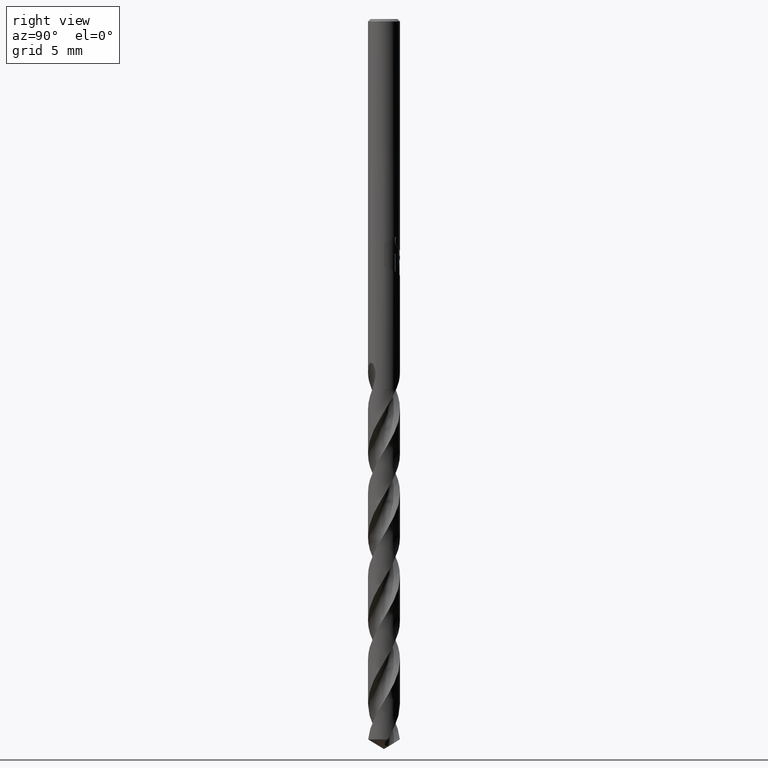
[diagram: clean part render]
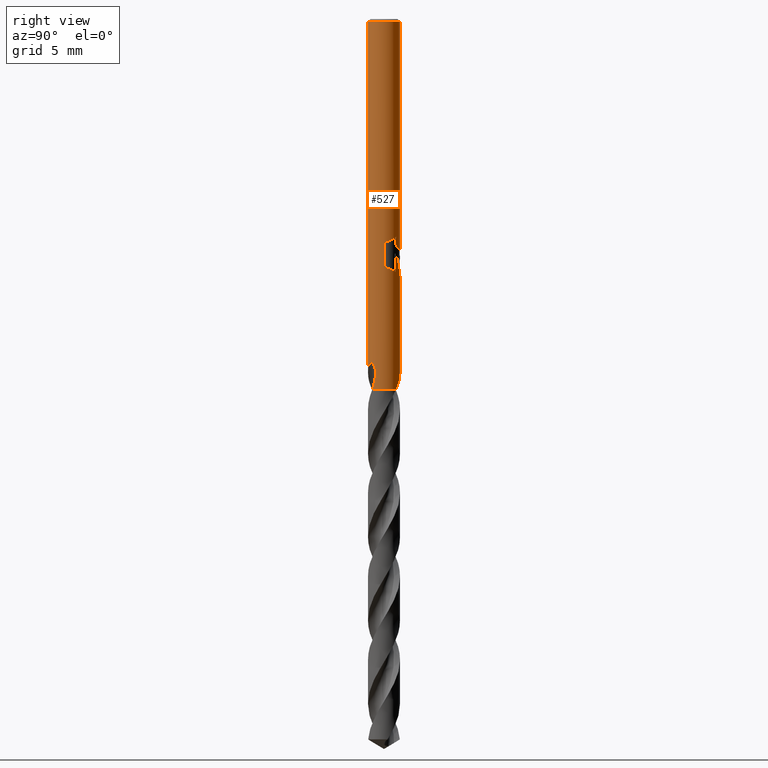
[diagram: same view with one face highlighted and labeled with its STEP entity id]
A machine part, right view. The second image highlights one B-rep face of the part: STEP entity #527.
In plain terms, the highlighted cylindrical surface (edge-blend (fillet) strip) has radius 1.25 mm, axis along (-0, -0, 1).
Its self-contained STEP definition (entity closure, byte-faithful):
#283=EDGE_CURVE('',#549,#675,#802,.T.);
#307=VERTEX_POINT('',#830);
#319=EDGE_CURVE('',#729,#633,#842,.T.);
#347=VERTEX_POINT('',#872);
#357=EDGE_CURVE('',#615,#503,#883,.T.);
#397=EDGE_CURVE('',#547,#503,#925,.T.);
#401=EDGE_CURVE('',#671,#661,#930,.T.);
#415=VERTEX_POINT('',#944);
#441=EDGE_CURVE('',#415,#307,#971,.T.);
#443=EDGE_CURVE('',#727,#671,#973,.T.);
#451=VERTEX_POINT('',#982);
#487=EDGE_CURVE('',#451,#549,#1023,.T.);
#495=VERTEX_POINT('',#1032);
#503=VERTEX_POINT('',#1040);
#527=ADVANCED_FACE('',(#1068),#1069,.T.);
#541=EDGE_CURVE('',#495,#307,#1084,.T.);
#547=VERTEX_POINT('',#1091);
#549=VERTEX_POINT('',#1093);
#553=EDGE_CURVE('',#495,#633,#1098,.T.);
#599=EDGE_CURVE('',#661,#347,#1147,.T.);
#603=EDGE_CURVE('',#547,#415,#1151,.T.);
#615=VERTEX_POINT('',#1164);
#633=VERTEX_POINT('',#1185);
#637=EDGE_CURVE('',#347,#451,#1189,.T.);
#659=EDGE_CURVE('',#615,#675,#1211,.T.);
#661=VERTEX_POINT('',#1213);
#671=VERTEX_POINT('',#1225);
#675=VERTEX_POINT('',#1229);
#711=EDGE_CURVE('',#729,#727,#1268,.T.);
#727=VERTEX_POINT('',#1287);
#729=VERTEX_POINT('',#1289);
#802=B_SPLINE_CURVE_WITH_KNOTS('',3,(#1359,#1360,#1361,#1362,#1363,#1364,#1365,#1366,#1367,#1368,#1369,#1370,#1371,#1372,#1373,#1374,#1375,#1376,#1377,#1378,#1379,#1380,#1381,#1382,#1383,#1384,#1385),.UNSPECIFIED.,.F.,.F.,(4,2,3,2,2,2,2,2,2,2,2,2,4),(-0.56627153206517,-0.283135766032585,0.0,0.283135766032586,0.566271532065173,0.856284656936765,1.14629778180836,1.41813337464671,1.68996896748507,1.96700896815394,2.2440489688228,2.52108896949167,2.79812897016054),.UNSPECIFIED.);
#830=CARTESIAN_POINT('',(0.870165089293926,-0.897392175904211,-28.89));
#842=LINE('',#1768,#1769);
#872=CARTESIAN_POINT('',(1.25,0.0,-19.4117344936641));
#883=CIRCLE('',#2399,1.25);
#925=LINE('',#3322,#3323);
#930=LINE('',#3330,#3331);
#944=CARTESIAN_POINT('',(1.01705270404274,-0.726707504570679,-28.2105247112293));
#971=B_SPLINE_CURVE_WITH_KNOTS('',3,(#3397,#3398,#3399,#3400),.UNSPECIFIED.,.F.,.F.,(4,4),(0.0,0.713138606166046),.UNSPECIFIED.);
#973=ELLIPSE('',#3403,3.80999321671222,1.25);
#982=CARTESIAN_POINT('',(1.25,0.0,-17.3934796436703));
#1023=B_SPLINE_CURVE_WITH_KNOTS('',3,(#4408,#4409,#4410,#4411,#4412,#4413,#4414,#4415,#4416,#4417,#4418,#4419),.UNSPECIFIED.,.F.,.F.,(4,2,2,2,2,4),(3.74969190086232,4.0041694417949,4.25864698272749,4.51312452366007,5.02207960552524,5.51976108059844),.UNSPECIFIED.);
#1032=CARTESIAN_POINT('',(0.794146447505181,0.965314156072986,-28.89));
#1040=CARTESIAN_POINT('',(1.53075794227797E-016,-1.25,-0.199999999999999));
#1068=FACE_OUTER_BOUND('',#5801,.T.);
#1069=CYLINDRICAL_SURFACE('',#5802,1.25);
#1084=CIRCLE('',#6000,1.25);
#1091=CARTESIAN_POINT('',(4.39558322194982E-013,-1.25,-27.5662708733769));
#1093=CARTESIAN_POINT('',(0.799431726384364,0.960941681295028,-17.000000276873));
#1098=B_SPLINE_CURVE_WITH_KNOTS('',3,(#6015,#6016,#6017,#6018,#6019,#6020,#6021,#6022,#6023,#6024,#6025,#6026,#6027,#6028,#6029,#6030,#6031,#6032,#6033,#6034,#6035,#6036,#6037,#6038,#6039,#6040,#6041,#6042),.UNSPECIFIED.,.F.,.F.,(4,2,2,2,2,2,2,2,2,2,2,2,2,4),(0.0,0.608799022413517,0.942866571225053,1.2459937069226,1.59847525659938,2.02161159611357,2.38609438651865,2.55210933455431,2.67349173236552,2.78838499956849,2.93417900734568,3.1475198424407,3.45078185963691,3.79518990267167),.UNSPECIFIED.);
#1147=B_SPLINE_CURVE_WITH_KNOTS('',3,(#6304,#6305,#6306,#6307,#6308,#6309,#6310,#6311,#6312,#6313,#6314,#6315),.UNSPECIFIED.,.F.,.F.,(4,2,2,2,2,4),(2.48857782660425,2.98625929846191,3.49521438140216,3.74969192287228,4.00416946434241,4.25864700581253),.UNSPECIFIED.);
#1151=B_SPLINE_CURVE_WITH_KNOTS('',3,(#6321,#6322,#6323,#6324,#6325,#6326,#6327,#6328,#6329,#6330,#6331,#6332,#6333,#6334,#6335,#6336,#6337,#6338,#6339,#6340,#6341,#6342,#6343,#6344,#6345,#6346,#6347,#6348),.UNSPECIFIED.,.F.,.F.,(4,2,2,2,2,2,2,2,2,2,2,2,2,4),(0.0,0.608799022413522,0.942866571225054,1.24599370692264,1.59847525659942,2.02161159611364,2.38609438651876,2.55210933455441,2.67349173236561,2.78838499956857,2.93417900734575,3.14751984244057,3.45078185963635,3.79518990267085),.UNSPECIFIED.);
#1164=CARTESIAN_POINT('',(0.0,1.25,-0.199999999999999));
#1185=CARTESIAN_POINT('',(-4.33785162466931E-013,1.25,-27.566270873377));
#1189=LINE('',#6864,#6865);
#1211=LINE('',#6920,#6921);
#1213=CARTESIAN_POINT('',(0.873560781758956,0.89408699832437,-19.7587351791531));
#1225=CARTESIAN_POINT('',(0.873560781758957,0.894086998324368,-18.3198931596091));
#1229=CARTESIAN_POINT('',(4.4836124040209E-016,1.25,-18.0232688117743));
#1268=B_SPLINE_CURVE_WITH_KNOTS('',3,(#7367,#7368,#7369,#7370,#7371,#7372,#7373,#7374,#7375,#7376,#7377,#7378,#7379,#7380,#7381,#7382,#7383,#7384,#7385,#7386,#7387),.UNSPECIFIED.,.F.,.F.,(4,3,2,2,2,2,2,2,2,4),(-0.252148323623309,0.0,0.252148323623308,0.504296647246617,1.00859329449323,1.49974484974529,1.74532062737131,1.99089640499734,2.23973712446459,2.48857784393184),.UNSPECIFIED.);
#1287=CARTESIAN_POINT('',(0.29010312703583,1.21587013109297,-19.9998328990228));
#1289=CARTESIAN_POINT('',(-2.17418747032393E-016,1.25,-20.0310253601033));
#1359=CARTESIAN_POINT('',(0.669801423276727,1.05539852822357,-16.8183236067443));
#1360=CARTESIAN_POINT('',(0.730187386566538,1.01707499159184,-16.8799041229678));
#1361=CARTESIAN_POINT('',(0.783389201088,0.975249669860154,-16.9574132108021));
#1362=CARTESIAN_POINT('',(0.855972484427494,0.912207154565089,-17.1308686538957));
#1363=CARTESIAN_POINT('',(0.875400981188567,0.892285336724803,-17.2272634239093));
#1364=CARTESIAN_POINT('',(0.875400981188567,0.892285336724803,-17.3216420125868));
#1365=CARTESIAN_POINT('',(0.875400981188567,0.892285336724803,-17.4160206012643));
#1366=CARTESIAN_POINT('',(0.855972484427494,0.912207154565089,-17.5124153712779));
#1367=CARTESIAN_POINT('',(0.783389201088001,0.975249669860154,-17.6858708143714));
#1368=CARTESIAN_POINT('',(0.730187386566539,1.01707499159183,-17.7633799022057));
#1369=CARTESIAN_POINT('',(0.607948686840582,1.09465294235301,-17.8880367234523));
#1370=CARTESIAN_POINT('',(0.529099811785179,1.13646904040623,-17.9439898742992));
#1371=CARTESIAN_POINT('',(0.351437754351389,1.20332872748362,-18.0203103224054));
#1372=CARTESIAN_POINT('',(0.252436521227642,1.22805581837274,-18.0405166027747));
#1373=CARTESIAN_POINT('',(0.066627745479017,1.25150759225847,-18.0405166027747));
#1374=CARTESIAN_POINT('',(-0.0294916209803419,1.25278007997067,-18.0225387482582));
#1375=CARTESIAN_POINT('',(-0.205655547848767,1.23613651344737,-17.9498801532845));
#1376=CARTESIAN_POINT('',(-0.285765504796268,1.21867005341297,-17.8952557042421));
#1377=CARTESIAN_POINT('',(-0.413183417128621,1.18163659106383,-17.7692913346337));
#1378=CARTESIAN_POINT('',(-0.468926848017849,1.15942741769996,-17.6888789599308));
#1379=CARTESIAN_POINT('',(-0.54353064493245,1.12638312234341,-17.5113118946768));
#1380=CARTESIAN_POINT('',(-0.562348199187247,1.1163621737012,-17.4139886794764));
#1381=CARTESIAN_POINT('',(-0.562348199187247,1.1163621737012,-17.2292953456972));
#1382=CARTESIAN_POINT('',(-0.543530644932451,1.12638312234341,-17.1319721304968));
#1383=CARTESIAN_POINT('',(-0.468926848017852,1.15942741769996,-16.9544050652428));
#1384=CARTESIAN_POINT('',(-0.413183417128621,1.18163659106383,-16.8739926905399));
#1385=CARTESIAN_POINT('',(-0.348870376185736,1.20032889685287,-16.8104133121646));
#1768=CARTESIAN_POINT('',(-1.53075794227797E-016,1.25,-27.945));
#1769=VECTOR('',#8698,1.0);
#2399=AXIS2_PLACEMENT_3D('',#8731,#8732,#8733);
#3322=CARTESIAN_POINT('',(1.53075794227797E-016,-1.25,-27.945));
#3323=VECTOR('',#8767,1.0);
#3330=CARTESIAN_POINT('',(0.873560781758957,0.894086998324368,-19.0393141693811));
#3331=VECTOR('',#8792,1.0);
#3397=CARTESIAN_POINT('',(1.01705270409536,-0.726707504497038,-28.2105247112583));
#3398=CARTESIAN_POINT('',(0.977048867794112,-0.782694279963921,-28.4380606029546));
#3399=CARTESIAN_POINT('',(0.928897644153498,-0.840441580371834,-28.6669167618133));
#3400=CARTESIAN_POINT('',(0.870165089293926,-0.89739217590421,-28.89));
#3403=AXIS2_PLACEMENT_3D('',#8828,#8829,#8830);
#4408=CARTESIAN_POINT('',(1.22448268963969,-0.251281003605046,-17.3619689020936));
#4409=CARTESIAN_POINT('',(1.2413036911048,-0.169312901777291,-17.3822200487131));
#4410=CARTESIAN_POINT('',(1.25,-0.0848258469775279,-17.3934796436703));
#4411=CARTESIAN_POINT('',(1.25,0.0848258469775279,-17.3934796436703));
#4412=CARTESIAN_POINT('',(1.2413036911048,0.169312901777291,-17.3822200487131));
#4413=CARTESIAN_POINT('',(1.20766168817458,0.333249105432801,-17.3417177554741));
#4414=CARTESIAN_POINT('',(1.18273086912222,0.41275038295918,-17.3126739589495));
#4415=CARTESIAN_POINT('',(1.08671786420101,0.639066061666195,-17.2119122492491));
#4416=CARTESIAN_POINT('',(0.993314387300983,0.774110933459606,-17.127554240618));
#4417=CARTESIAN_POINT('',(0.779616282297643,0.988480435032257,-16.982745290547));
#4418=CARTESIAN_POINT('',(0.644099189837711,1.08417619512385,-16.9104541729278));
#4419=CARTESIAN_POINT('',(0.490747762537337,1.14963760966863,-16.8588863363384));
#5801=EDGE_LOOP('',(#8953,#8954,#8955,#8956,#8957,#8958,#8959,#8960,#8961,#8962,#8963,#8964,#8965,#8966,#8967));
#5802=AXIS2_PLACEMENT_3D('',#8968,#8969,#8970);
#6000=AXIS2_PLACEMENT_3D('',#8984,#8985,#8986);
#6015=CARTESIAN_POINT('',(0.794146447505181,0.965314156072986,-28.89));
#6016=CARTESIAN_POINT('',(0.711876728132428,1.03299596200745,-28.7172786291709));
#6017=CARTESIAN_POINT('',(0.617481146059564,1.09306024336693,-28.5560654430814));
#6018=CARTESIAN_POINT('',(0.452884078105355,1.16682480417789,-28.2865294004521));
#6019=CARTESIAN_POINT('',(0.393474394409545,1.18810651853339,-28.191384189921));
#6020=CARTESIAN_POINT('',(0.27838425117616,1.21992993863449,-28.0070723740685));
#6021=CARTESIAN_POINT('',(0.223206420167219,1.23117315827679,-27.918747083039));
#6022=CARTESIAN_POINT('',(0.103715296003179,1.24737573072122,-27.7283112664232));
#6023=CARTESIAN_POINT('',(0.0383907539272846,1.25114837043852,-27.6246920369229));
#6024=CARTESIAN_POINT('',(-0.106638549908706,1.24795484166696,-27.4031513511802));
#6025=CARTESIAN_POINT('',(-0.192653687646439,1.23842813964484,-27.277093815638));
#6026=CARTESIAN_POINT('',(-0.3580729979803,1.20019031681798,-27.0700331647351));
#6027=CARTESIAN_POINT('',(-0.449201544450309,1.17125307374376,-26.9694664468972));
#6028=CARTESIAN_POINT('',(-0.587353750622338,1.10445537941938,-26.8749895563776));
#6029=CARTESIAN_POINT('',(-0.633238928916582,1.07915319943912,-26.8515683191707));
#6030=CARTESIAN_POINT('',(-0.713649079305822,1.02705526472247,-26.8335953019397));
#6031=CARTESIAN_POINT('',(-0.746633845729707,1.00332677872142,-26.8332777355938));
#6032=CARTESIAN_POINT('',(-0.808073058237144,0.954450300480376,-26.8490817843072));
#6033=CARTESIAN_POINT('',(-0.834944836686369,0.930842656376983,-26.8638859393282));
#6034=CARTESIAN_POINT('',(-0.889633872256758,0.879104280012401,-26.9101942158589));
#6035=CARTESIAN_POINT('',(-0.914936015037014,0.852290852648587,-26.9443830338076));
#6036=CARTESIAN_POINT('',(-0.966763264612508,0.793741985449967,-27.0379992361418));
#6037=CARTESIAN_POINT('',(-0.991533120331538,0.76185978771309,-27.1074361177887));
#6038=CARTESIAN_POINT('',(-1.03809753469729,0.697862509899188,-27.3016905556733));
#6039=CARTESIAN_POINT('',(-1.05492182076192,0.670618554151901,-27.4400292777076));
#6040=CARTESIAN_POINT('',(-1.06561951101393,0.653506101606485,-27.7705395098121));
#6041=CARTESIAN_POINT('',(-1.05796123514083,0.669454576934679,-27.9778505655066));
#6042=CARTESIAN_POINT('',(-1.01705270404275,0.72670750457068,-28.2105247112293));
#6304=CARTESIAN_POINT('',(0.490747760773335,1.14963761042163,-19.9463277923244));
#6305=CARTESIAN_POINT('',(0.64409918781192,1.08417619626678,-19.8947599588616));
#6306=CARTESIAN_POINT('',(0.779616280248049,0.98848043658848,-19.8224688435924));
#6307=CARTESIAN_POINT('',(0.99331438611445,0.774110935161,-19.6776598962334));
#6308=CARTESIAN_POINT('',(1.08671786350635,0.6390660629557,-19.5933018881239));
#6309=CARTESIAN_POINT('',(1.18273086886248,0.412750383745369,-19.4925401785897));
#6310=CARTESIAN_POINT('',(1.20766168801019,0.333249106068986,-19.4634963820279));
#6311=CARTESIAN_POINT('',(1.24130369107016,0.169312902110937,-19.4229940886826));
#6312=CARTESIAN_POINT('',(1.25,0.0848258471567084,-19.4117344936641));
#6313=CARTESIAN_POINT('',(1.25,-0.0848258471567084,-19.4117344936641));
#6314=CARTESIAN_POINT('',(1.24130369107016,-0.169312902110937,-19.4229940886826));
#6315=CARTESIAN_POINT('',(1.22448268954018,-0.251281004089962,-19.4432452353553));
#6321=CARTESIAN_POINT('',(-0.794146447505182,-0.965314156072985,-28.89));
#6322=CARTESIAN_POINT('',(-0.711876728132429,-1.03299596200745,-28.7172786291709));
#6323=CARTESIAN_POINT('',(-0.617481146059567,-1.09306024336693,-28.5560654430814));
#6324=CARTESIAN_POINT('',(-0.452884078105355,-1.16682480417789,-28.2865294004521));
#6325=CARTESIAN_POINT('',(-0.393474394409544,-1.18810651853339,-28.191384189921));
#6326=CARTESIAN_POINT('',(-0.278384251176154,-1.21992993863449,-28.0070723740685));
#6327=CARTESIAN_POINT('',(-0.223206420167206,-1.23117315827679,-27.9187470830389));
#6328=CARTESIAN_POINT('',(-0.103715296003204,-1.24737573072122,-27.7283112664232));
#6329=CARTESIAN_POINT('',(-0.0383907539272968,-1.25114837043852,-27.6246920369229));
#6330=CARTESIAN_POINT('',(0.106638549908726,-1.24795484166696,-27.4031513511802));
#6331=CARTESIAN_POINT('',(0.192653687646446,-1.23842813964484,-27.277093815638));
#6332=CARTESIAN_POINT('',(0.358072997980294,-1.20019031681798,-27.0700331647351));
#6333=CARTESIAN_POINT('',(0.449201544450306,-1.17125307374376,-26.9694664468972));
#6334=CARTESIAN_POINT('',(0.587353750622332,-1.10445537941938,-26.8749895563776));
#6335=CARTESIAN_POINT('',(0.633238928916581,-1.07915319943912,-26.8515683191707));
#6336=CARTESIAN_POINT('',(0.713649079305823,-1.02705526472247,-26.8335953019397));
#6337=CARTESIAN_POINT('',(0.746633845729707,-1.00332677872142,-26.8332777355938));
#6338=CARTESIAN_POINT('',(0.808073058237144,-0.954450300480376,-26.8490817843072));
#6339=CARTESIAN_POINT('',(0.83494483668637,-0.930842656376983,-26.8638859393282));
#6340=CARTESIAN_POINT('',(0.889633872256757,-0.879104280012402,-26.9101942158589));
#6341=CARTESIAN_POINT('',(0.914936015037013,-0.852290852648589,-26.9443830338076));
#6342=CARTESIAN_POINT('',(0.966763264612484,-0.793741985449995,-27.0379992361417));
#6343=CARTESIAN_POINT('',(0.991533120331523,-0.761859787713113,-27.1074361177886));
#6344=CARTESIAN_POINT('',(1.03809753469731,-0.697862509899174,-27.3016905556733));
#6345=CARTESIAN_POINT('',(1.05492182076193,-0.670618554151899,-27.4400292777076));
#6346=CARTESIAN_POINT('',(1.06561951101394,-0.653506101606483,-27.7705395098122));
#6347=CARTESIAN_POINT('',(1.05796123514082,-0.669454576934692,-27.9778505655067));
#6348=CARTESIAN_POINT('',(1.01705270404275,-0.72670750457068,-28.2105247112293));
#6864=CARTESIAN_POINT('',(1.25,0.0,-18.4026070686603));
#6865=VECTOR('',#9095,1.0);
#6920=CARTESIAN_POINT('',(-1.53075794227797E-016,1.25,-27.945));
#6921=VECTOR('',#9103,1.0);
#7367=CARTESIAN_POINT('',(-1.22463553924459,-0.250535019546371,-19.5078128373167));
#7368=CARTESIAN_POINT('',(-1.24143958382734,-0.168395476077887,-19.4896241494105));
#7369=CARTESIAN_POINT('',(-1.25,-0.0840494412077695,-19.4797100050267));
#7370=CARTESIAN_POINT('',(-1.25,0.0,-19.4797100050267));
#7371=CARTESIAN_POINT('',(-1.25,0.0840494412077695,-19.4797100050267));
#7372=CARTESIAN_POINT('',(-1.24143958382734,0.168395476077887,-19.4896241494105));
#7373=CARTESIAN_POINT('',(-1.20783149466185,0.332674563014854,-19.5260015252229));
#7374=CARTESIAN_POINT('',(-1.18280340570935,0.412648055826509,-19.5523000203123));
#7375=CARTESIAN_POINT('',(-1.08609475985221,0.640396988178231,-19.644245299825));
#7376=CARTESIAN_POINT('',(-0.991694695977028,0.776389854162967,-19.7220625561564));
#7377=CARTESIAN_POINT('',(-0.77632235556571,0.991131527665127,-19.8547376152222));
#7378=CARTESIAN_POINT('',(-0.640307760393833,1.0863409288748,-19.9203442462299));
#7379=CARTESIAN_POINT('',(-0.410691485439252,1.18352871362699,-19.987768920909));
#7380=CARTESIAN_POINT('',(-0.329923164951538,1.20858821822764,-20.0052595075535));
#7381=CARTESIAN_POINT('',(-0.165502852792551,1.2418307379801,-20.0276074810255));
#7382=CARTESIAN_POINT('',(-0.0818461793684626,1.25,-20.0324508760605));
#7383=CARTESIAN_POINT('',(0.0829343282817952,1.25,-20.0295808918426));
#7384=CARTESIAN_POINT('',(0.167413257690449,1.24161662486302,-20.0216444545353));
#7385=CARTESIAN_POINT('',(0.332979336986514,1.20779294709355,-19.9929033767966));
#7386=CARTESIAN_POINT('',(0.414072030884795,1.18236832315246,-19.9721122259002));
#7387=CARTESIAN_POINT('',(0.490747743852374,1.14963761764471,-19.9463283247946));
#8698=DIRECTION('',(0.0,0.0,-1.0));
#8731=CARTESIAN_POINT('',(0.0,0.0,-0.199999999999999));
#8732=DIRECTION('',(0.0,0.0,-1.0));
#8733=DIRECTION('',(0.0,1.0,0.0));
#8767=DIRECTION('',(-0.0,-0.0,1.0));
#8792=DIRECTION('',(0.0,0.0,-1.0));
#8828=CARTESIAN_POINT('',(0.0,0.0,-20.8351219173269));
#8829=DIRECTION('',(0.944648353914092,0.0,-0.328084573619969));
#8830=DIRECTION('',(0.328084573619969,-0.0,0.944648353914092));
#8953=ORIENTED_EDGE('',*,*,#659,.F.);
#8954=ORIENTED_EDGE('',*,*,#357,.T.);
#8955=ORIENTED_EDGE('',*,*,#397,.F.);
#8956=ORIENTED_EDGE('',*,*,#603,.T.);
#8957=ORIENTED_EDGE('',*,*,#441,.T.);
#8958=ORIENTED_EDGE('',*,*,#541,.F.);
#8959=ORIENTED_EDGE('',*,*,#553,.T.);
#8960=ORIENTED_EDGE('',*,*,#319,.F.);
#8961=ORIENTED_EDGE('',*,*,#711,.T.);
#8962=ORIENTED_EDGE('',*,*,#443,.T.);
#8963=ORIENTED_EDGE('',*,*,#401,.T.);
#8964=ORIENTED_EDGE('',*,*,#599,.T.);
#8965=ORIENTED_EDGE('',*,*,#637,.T.);
#8966=ORIENTED_EDGE('',*,*,#487,.T.);
#8967=ORIENTED_EDGE('',*,*,#283,.T.);
#8968=CARTESIAN_POINT('',(0.0,0.0,-27.945));
#8969=DIRECTION('',(-0.0,-0.0,1.0));
#8970=DIRECTION('',(0.0,1.0,0.0));
#8984=CARTESIAN_POINT('',(0.0,0.0,-28.89));
#8985=DIRECTION('',(0.0,0.0,-1.0));
#8986=DIRECTION('',(0.0,1.0,0.0));
#9095=DIRECTION('',(-0.0,-0.0,1.0));
#9103=DIRECTION('',(0.0,0.0,-1.0));